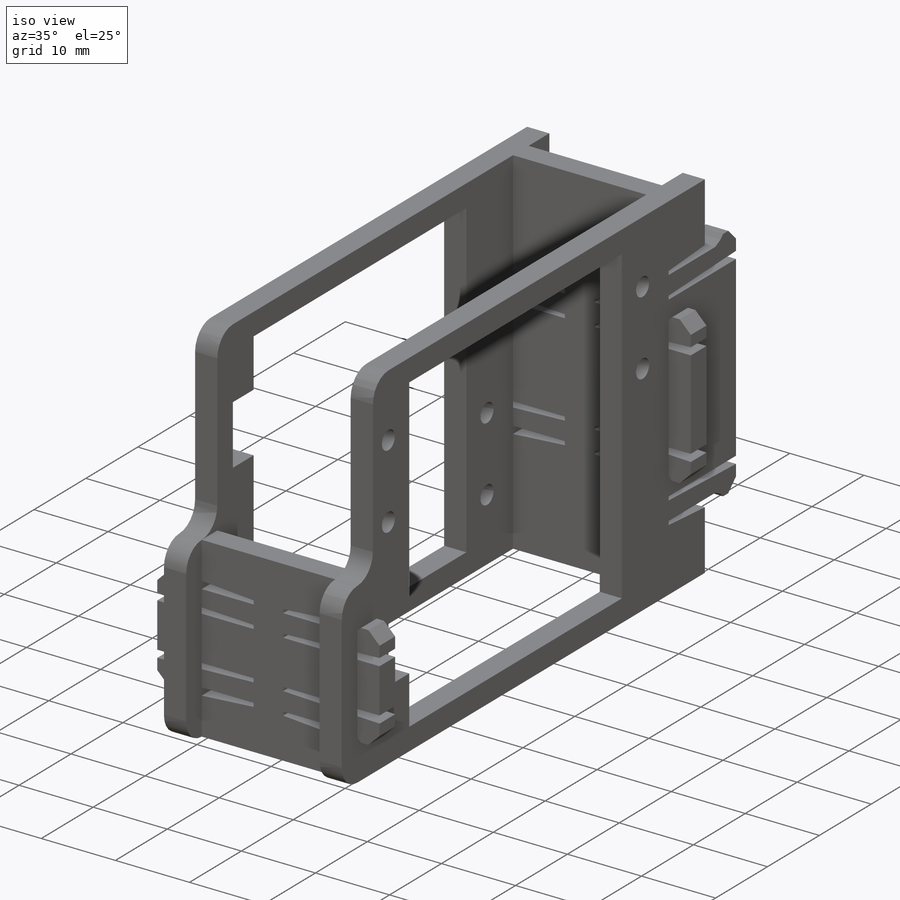
[diagram: iso view]
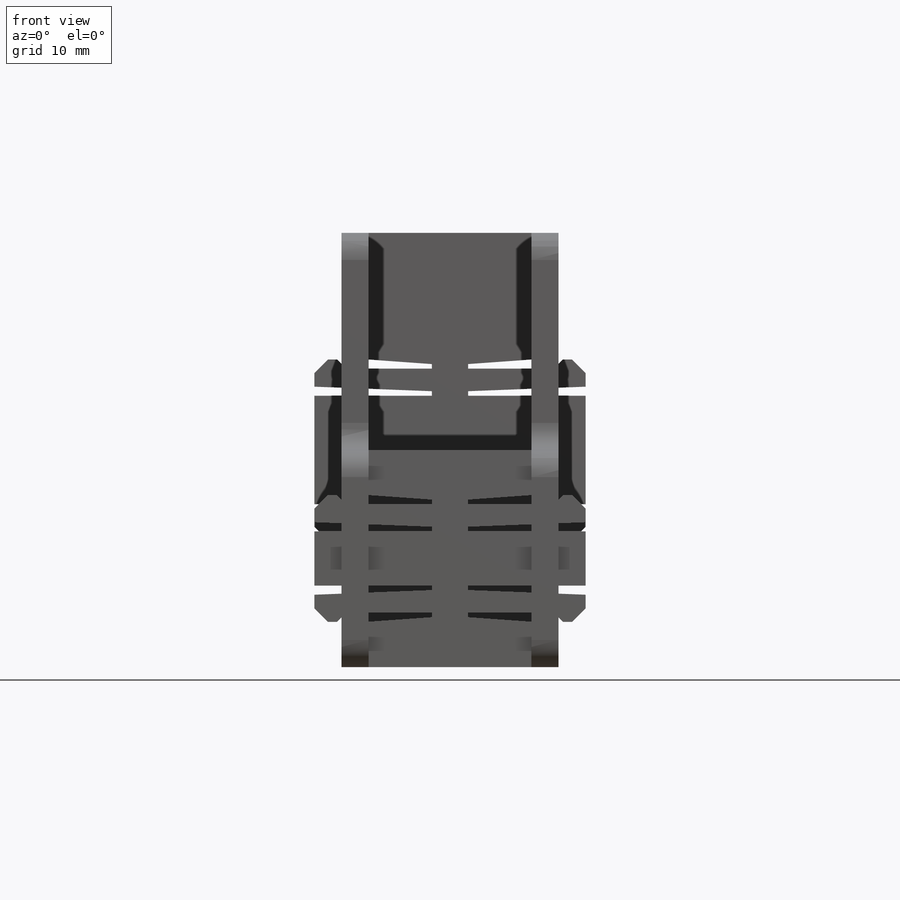
[diagram: front view]
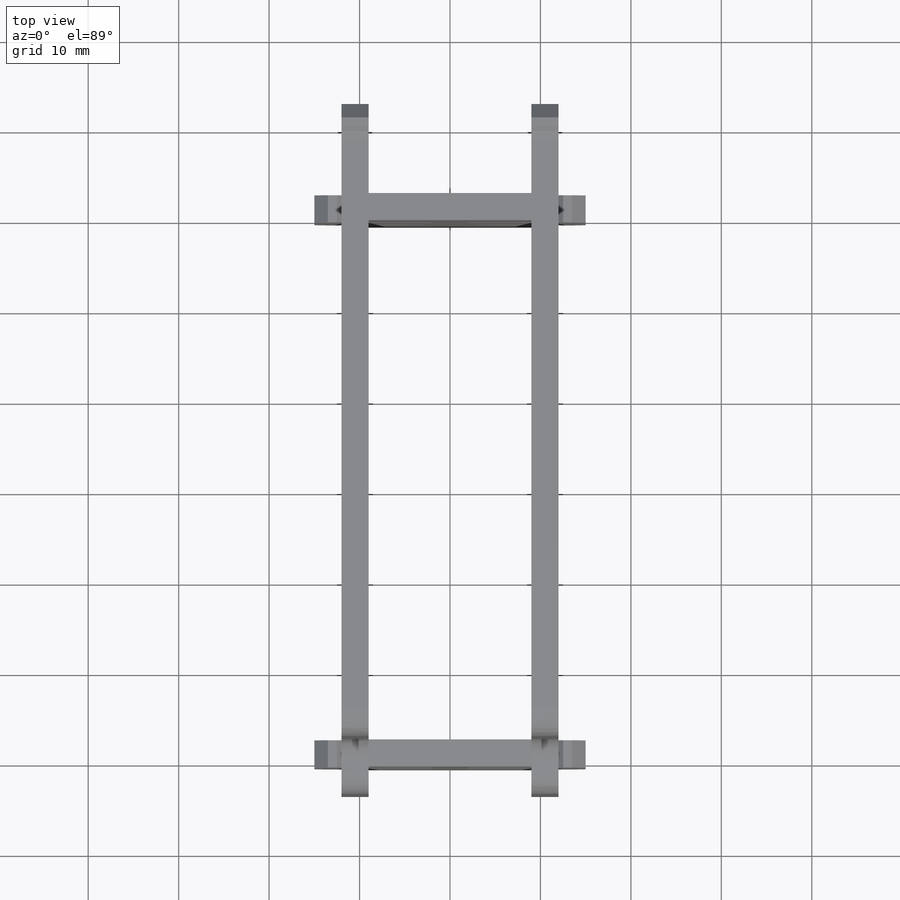
[diagram: top view]
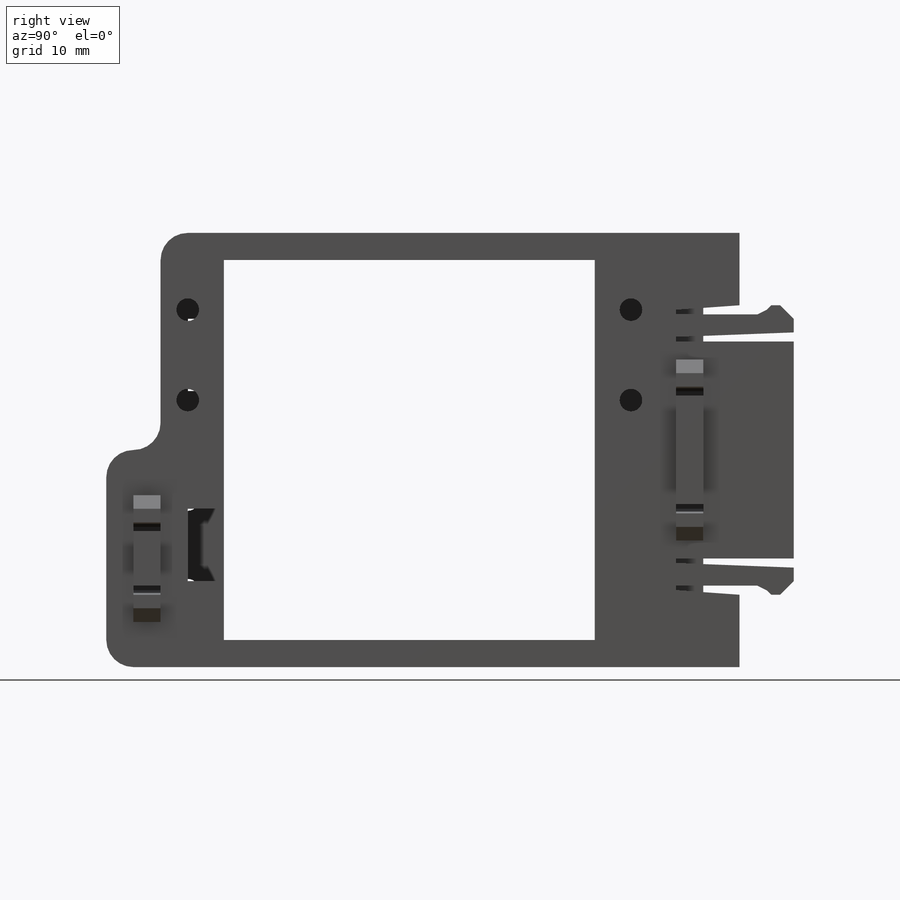
[diagram: right view]
SOLIDWORKS PART (.sldprt)
format: sldprt  version: not decoded by parser v0  size: 807,424 bytes
history: native  units: mm
features: sketch x6, extrude x6, plane x2, fillet x2, material x1 (+12 scaffold rows collapsed)
feature tree (29):
  scaffold x12  (default folders/planes/origin — collapsed)
  material  "Lasercut ABS"
  plane  "Plane1"  Offset=9mm
  plane  "Plane2"  Offset=9mm
  sketch  "Sketch1"  dims[c1.D1=13.0mm c1.D2=0.5mm c1.D3=1.0mm c1.D4=1.5mm c1.D5=1.5mm c1.D6=0.5mm c1.D7=1.0mm c1.D8=7.0mm c1.D9=1.0mm c1.D10=0.5mm c1.D11=1.0mm c1.D12=1.5mm c1.D13=2.5mm c2.D1=13.0mm c2.D2=0.5mm c2.D3=1.0mm c2.D4=0.5mm c2.D5=1.0mm c2.D6=2.5mm c2.D7=1.5mm c2.D8=1.5mm c2.D9=1.5mm c2.D10=1.0mm c2.D11=0.5mm c2.D12=1.0mm c2.D13=7.0mm c3.D3=2.5mm c3.D1=41.0mm c3.D2=42.0mm c3.D4=10.0mm c3.D5=49.0mm c3.D6=8.0mm c3.D7=4.0mm c3.D8=3.0mm c3.D9=3.0mm c3.D10=3.0mm c3.D11=9.0mm c3.D12=3.0mm c3.D13=10.0mm c3.D14=10.0mm c3.D15=3.0mm c4.D13=3.0mm c4.D14=3.0mm c4.D15=9.0mm c4.D16=30.0mm]
  extrude  "Boss-Extrude1"  Depth=3mm
  sketch  "Sketch2"
  extrude  "Boss-Extrude2"  Depth=3mm
  sketch  "Sketch3"
  extrude  "Boss-Extrude3"  Depth=3mm
  sketch  "Sketch4"  dims[D1=3.0mm D2=6.0mm D3=6.0mm]
  extrude  "Boss-Extrude4"  [1 undecoded]
  sketch  "Sketch5"
  extrude  "Boss-Extrude6"  [1 undecoded]
  sketch  "Sketch6"
  extrude  "Boss-Extrude7"  Depth=3mm
  fillet  "Fillet1"  Radius=3mm
  fillet  "Fillet2"  Radius=3mm
decode coverage: 8 of 14 modeling features carry decoded parameters
note: 2 parameter values undecoded
note: suppression state not decoded; provenance and decode notes live in map.json
